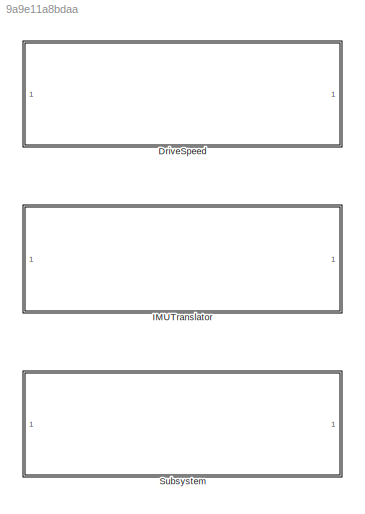
MODEL slx_9a9e11a8bdaa
KIND library
CONFIG AbsTol = auto
CONFIG EnableMultiTasking = off
CONFIG FixedStep = auto
CONFIG MaxStep = auto
CONFIG MinStep = auto
CONFIG RelTol = 1e-3
CONFIG SampleTimeConstraint = Unconstrained
CONFIG SolverName = VariableStepAuto
CONFIG StartTime = 0.0
CONFIG StopTime = 10.0
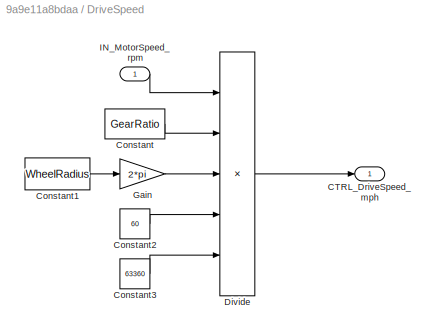
BLOCK [SubSystem] DriveSpeed
BLOCK [Outport] DriveSpeed/CTRL_DriveSpeed_mph
BLOCK [Constant] DriveSpeed/Constant
  Value = GearRatio
BLOCK [Constant] DriveSpeed/Constant1
  Value = WheelRadius
BLOCK [Constant] DriveSpeed/Constant2
  Value = 60
BLOCK [Constant] DriveSpeed/Constant3
  Value = 63360
BLOCK [Product] DriveSpeed/Divide
  Inputs = ****/
  RndMeth = Zero
  SaturateOnIntegerOverflow = on
BLOCK [Gain] DriveSpeed/Gain
  Gain = 2*pi
BLOCK [Inport] DriveSpeed/IN_MotorSpeed_rpm
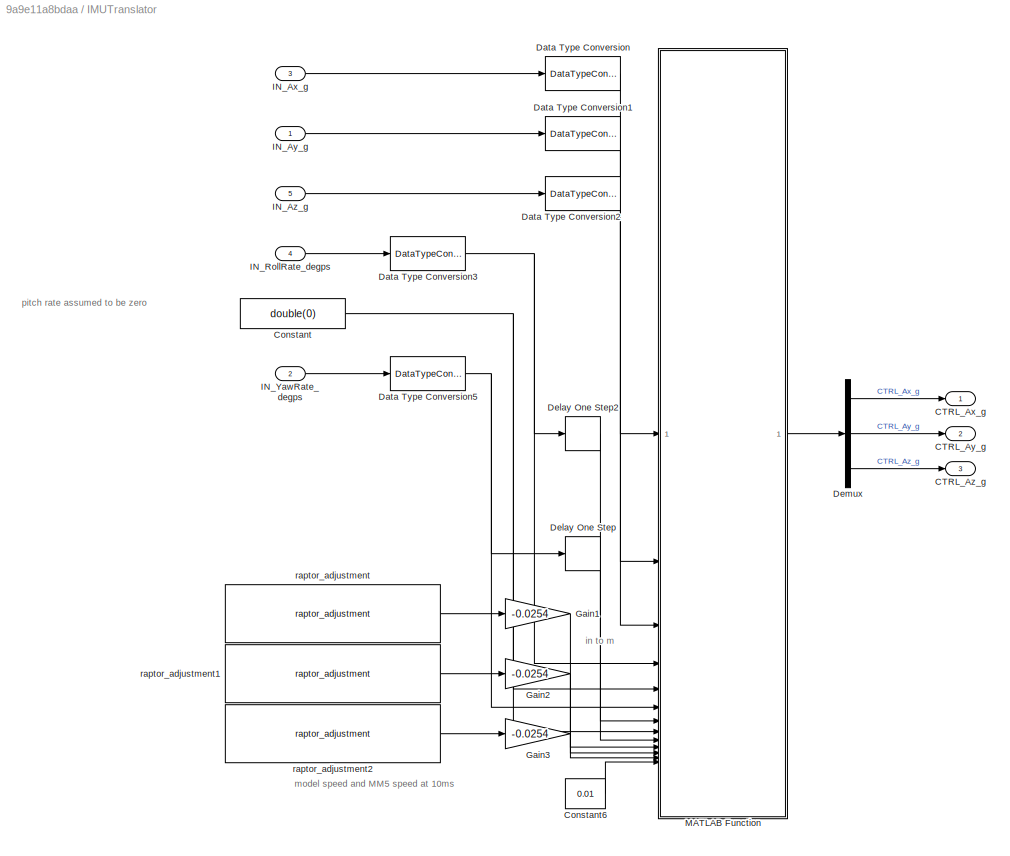
BLOCK [SubSystem] IMUTranslator
BLOCK [Outport] IMUTranslator/CTRL_Ax_g
BLOCK [Outport] IMUTranslator/CTRL_Ay_g
  Port = 2
BLOCK [Outport] IMUTranslator/CTRL_Az_g
  Port = 3
BLOCK [Constant] IMUTranslator/Constant
  Value = double(0)
BLOCK [Constant] IMUTranslator/Constant6
  Value = 0.01
BLOCK [DataTypeConversion] IMUTranslator/Data Type Conversion
  RndMeth = Floor
  SaturateOnIntegerOverflow = off
BLOCK [DataTypeConversion] IMUTranslator/Data Type Conversion1
  RndMeth = Floor
  SaturateOnIntegerOverflow = off
BLOCK [DataTypeConversion] IMUTranslator/Data Type Conversion2
  RndMeth = Floor
  SaturateOnIntegerOverflow = off
BLOCK [DataTypeConversion] IMUTranslator/Data Type Conversion3
  RndMeth = Floor
  SaturateOnIntegerOverflow = off
BLOCK [DataTypeConversion] IMUTranslator/Data Type Conversion5
  RndMeth = Floor
  SaturateOnIntegerOverflow = off
BLOCK [Delay] IMUTranslator/Delay One Step
  DelayLength = 1
  InputPortMap = u0
BLOCK [Delay] IMUTranslator/Delay One Step2
  DelayLength = 1
  InputPortMap = u0
BLOCK [Demux] IMUTranslator/Demux
  Outputs = 3
BLOCK [Gain] IMUTranslator/Gain1
  Gain = -0.0254
BLOCK [Gain] IMUTranslator/Gain2
  Gain = -0.0254
BLOCK [Gain] IMUTranslator/Gain3
  Gain = -0.0254
BLOCK [Inport] IMUTranslator/IN_Ax_g
  Port = 3
BLOCK [Inport] IMUTranslator/IN_Ay_g
BLOCK [Inport] IMUTranslator/IN_Az_g
  Port = 5
BLOCK [Inport] IMUTranslator/IN_RollRate_degps
  Port = 4
BLOCK [Inport] IMUTranslator/IN_YawRate_degps
  Port = 2
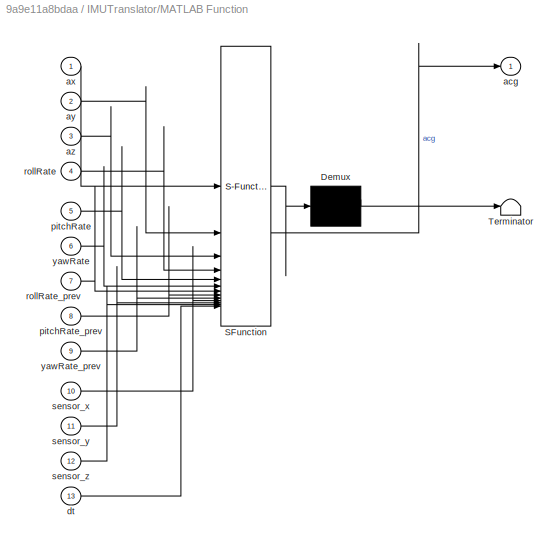
BLOCK [SubSystem] IMUTranslator/MATLAB Function
  ErrorFcn = Stateflow.Translate.translate
  PermitHierarchicalResolution = ExplicitOnly
  SFBlockType = MATLAB Function
  TreatAsAtomicUnit = on
BLOCK [Demux] IMUTranslator/MATLAB Function/ Demux 
  Outputs = 1
BLOCK [S-Function] IMUTranslator/MATLAB Function/ SFunction 
  EnableBusSupport = off
  FunctionName = sf_sfun
  PortCounts = [13 2]
  SFcnIsStateOwnerBlock = off
  SFunctionDeploymentMode = off
  Tag = Stateflow S-Function 2
BLOCK [Terminator] IMUTranslator/MATLAB Function/ Terminator 
BLOCK [Outport] IMUTranslator/MATLAB Function/acg
BLOCK [Inport] IMUTranslator/MATLAB Function/ax
BLOCK [Inport] IMUTranslator/MATLAB Function/ay
  Port = 2
BLOCK [Inport] IMUTranslator/MATLAB Function/az
  Port = 3
BLOCK [Inport] IMUTranslator/MATLAB Function/dt
  Port = 13
BLOCK [Inport] IMUTranslator/MATLAB Function/pitchRate
  Port = 5
BLOCK [Inport] IMUTranslator/MATLAB Function/pitchRate_prev
  Port = 8
BLOCK [Inport] IMUTranslator/MATLAB Function/rollRate
  Port = 4
BLOCK [Inport] IMUTranslator/MATLAB Function/rollRate_prev
  Port = 7
BLOCK [Inport] IMUTranslator/MATLAB Function/sensor_x
  Port = 10
BLOCK [Inport] IMUTranslator/MATLAB Function/sensor_y
  Port = 11
BLOCK [Inport] IMUTranslator/MATLAB Function/sensor_z
  Port = 12
BLOCK [Inport] IMUTranslator/MATLAB Function/yawRate
  Port = 6
BLOCK [Inport] IMUTranslator/MATLAB Function/yawRate_prev
  Port = 9
BLOCK [Reference] IMUTranslator/raptor_adjustment  REF=Raptor_lib/Data Storage/raptor_adjustment
  SourceBlock = Raptor_lib/Data Storage/raptor_adjustment
  SourceProductName = Raptor
  SourceType = Adjustment
BLOCK [Reference] IMUTranslator/raptor_adjustment1  REF=Raptor_lib/Data Storage/raptor_adjustment
  SourceBlock = Raptor_lib/Data Storage/raptor_adjustment
  SourceProductName = Raptor
  SourceType = Adjustment
BLOCK [Reference] IMUTranslator/raptor_adjustment2  REF=Raptor_lib/Data Storage/raptor_adjustment
  SourceBlock = Raptor_lib/Data Storage/raptor_adjustment
  SourceProductName = Raptor
  SourceType = Adjustment
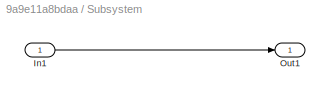
BLOCK [SubSystem] Subsystem
BLOCK [Inport] Subsystem/In1
BLOCK [Outport] Subsystem/Out1
ANNOTATION IMUTranslator: in to m
ANNOTATION IMUTranslator: model speed and MM5 speed at 10ms
ANNOTATION IMUTranslator: pitch rate assumed to be zero
LINE DriveSpeed/Constant1:1 -> DriveSpeed/Gain:1
LINE DriveSpeed/Constant2:1 -> DriveSpeed/Divide:4
LINE DriveSpeed/Constant3:1 -> DriveSpeed/Divide:5
LINE DriveSpeed/Constant:1 -> DriveSpeed/Divide:2
LINE DriveSpeed/Divide:1 -> DriveSpeed/CTRL_DriveSpeed_mph:1
LINE DriveSpeed/Gain:1 -> DriveSpeed/Divide:3
LINE DriveSpeed/IN_MotorSpeed_rpm:1 -> DriveSpeed/Divide:1
LINE IMUTranslator/Constant6:1 -> IMUTranslator/MATLAB Function:13
NET IMUTranslator/Constant:1 -> IMUTranslator/MATLAB Function:5, IMUTranslator/MATLAB Function:8
LINE IMUTranslator/Data Type Conversion1:1 -> IMUTranslator/MATLAB Function:2
LINE IMUTranslator/Data Type Conversion2:1 -> IMUTranslator/MATLAB Function:3
NET IMUTranslator/Data Type Conversion3:1 -> IMUTranslator/Delay One Step2:1, IMUTranslator/MATLAB Function:4
NET IMUTranslator/Data Type Conversion5:1 -> IMUTranslator/Delay One Step:1, IMUTranslator/MATLAB Function:6
LINE IMUTranslator/Data Type Conversion:1 -> IMUTranslator/MATLAB Function:1
LINE IMUTranslator/Delay One Step2:1 -> IMUTranslator/MATLAB Function:7
LINE IMUTranslator/Delay One Step:1 -> IMUTranslator/MATLAB Function:9
LINE IMUTranslator/Demux:1 -> IMUTranslator/CTRL_Ax_g:1
LINE IMUTranslator/Demux:2 -> IMUTranslator/CTRL_Ay_g:1
LINE IMUTranslator/Demux:3 -> IMUTranslator/CTRL_Az_g:1
LINE IMUTranslator/Gain1:1 -> IMUTranslator/MATLAB Function:10
LINE IMUTranslator/Gain2:1 -> IMUTranslator/MATLAB Function:11
LINE IMUTranslator/Gain3:1 -> IMUTranslator/MATLAB Function:12
LINE IMUTranslator/IN_Ax_g:1 -> IMUTranslator/Data Type Conversion:1
LINE IMUTranslator/IN_Ay_g:1 -> IMUTranslator/Data Type Conversion1:1
LINE IMUTranslator/IN_Az_g:1 -> IMUTranslator/Data Type Conversion2:1
LINE IMUTranslator/IN_RollRate_degps:1 -> IMUTranslator/Data Type Conversion3:1
LINE IMUTranslator/IN_YawRate_degps:1 -> IMUTranslator/Data Type Conversion5:1
LINE IMUTranslator/MATLAB Function:1 -> IMUTranslator/Demux:1
LINE IMUTranslator/raptor_adjustment1:1 -> IMUTranslator/Gain2:1
LINE IMUTranslator/raptor_adjustment2:1 -> IMUTranslator/Gain3:1
LINE IMUTranslator/raptor_adjustment:1 -> IMUTranslator/Gain1:1
LINE Subsystem/In1:1 -> Subsystem/Out1:1
note: NET lines group one-source signal fan-out (src -> all destinations, sorted); 1:1 wires keep LINE
CHART IMUTranslator/MATLAB Function states=1 transitions=1
  STATE_LABEL 'eML_blk_kernel()'
  STATE_LABEL 'SCRIPT:\nfunction acg = fcn(ax, ay, az, rollRate, pitchRate, yawRate, rollRate_prev,...\n    pitchRate_prev, yawRate_prev, sensor_x, sensor_y, sensor_z, dt)\n\n% gravity vector (gravity already in az)\n% g = [0; 0; -9.80665];\n\n% sensor to cg\nr = [sensor_x; sensor_y; sensor_z];\n\n% accelerometer data from sensor (g to m/s^2)\naccel_meas = [ax; ay; az] * 9.80665;\n\n% gyroscope data from sensor (deg/s to rad...<+535ch>'
CHART  states=0 transitions=0
